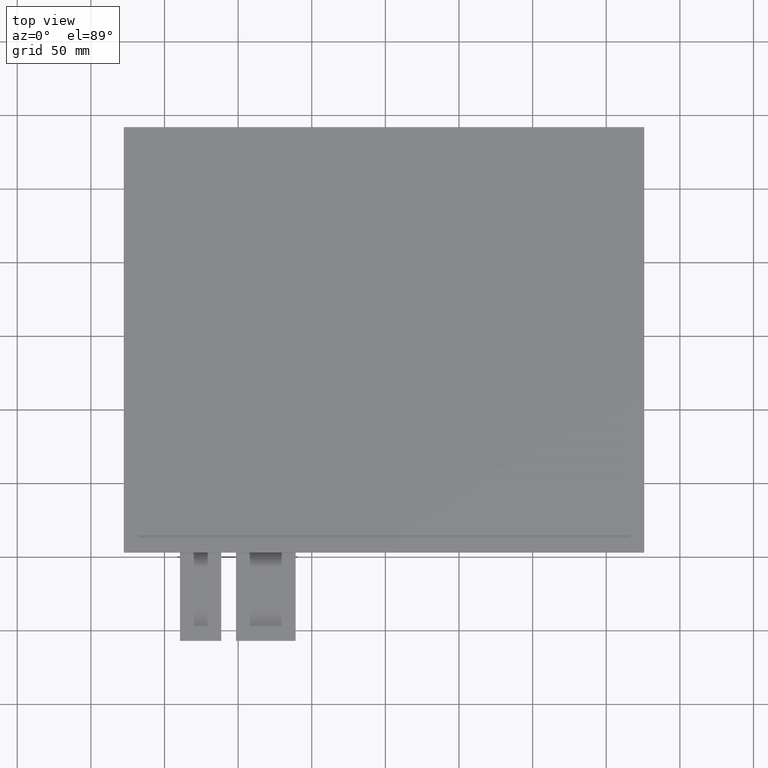
[diagram: clean part render]
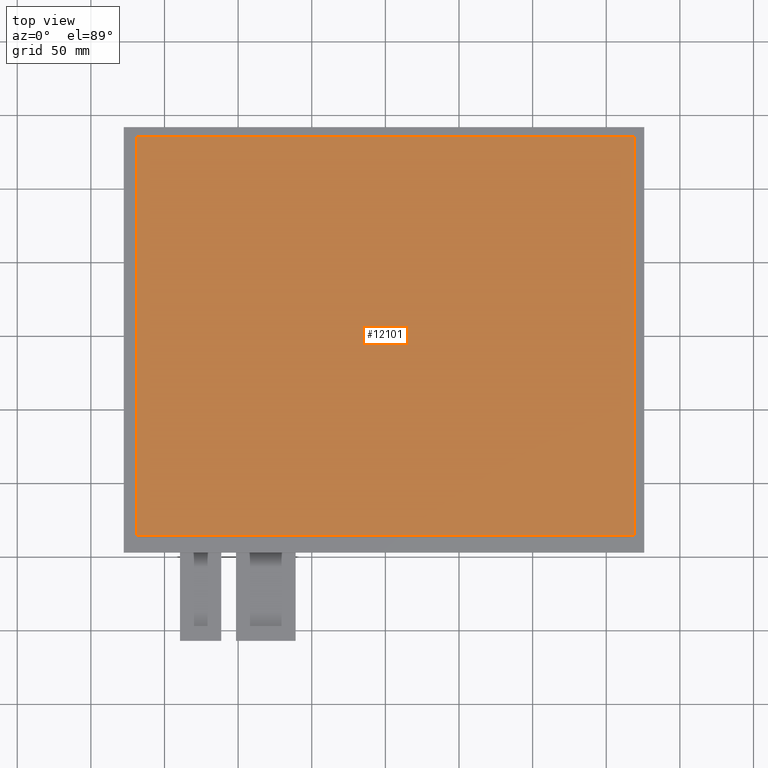
[diagram: same view with one face highlighted and labeled with its STEP entity id]
A machine part, top view. The second image highlights one B-rep face of the part: STEP entity #12101.
In plain terms, the highlighted planar face has unit normal (0, 0, 1).
Its self-contained STEP definition (entity closure, byte-faithful):
#643=PLANE('',#12707);
#1221=FACE_OUTER_BOUND('',#1803,.T.);
#1803=EDGE_LOOP('',(#11513,#11514,#11515,#11516));
#3477=LINE('',#18957,#5185);
#3481=LINE('',#18965,#5189);
#3484=LINE('',#18971,#5192);
#3487=LINE('',#18976,#5195);
#5185=VECTOR('',#15525,10.);
#5189=VECTOR('',#15531,10.);
#5192=VECTOR('',#15536,10.);
#5195=VECTOR('',#15541,10.);
#6349=VERTEX_POINT('',#18955);
#6350=VERTEX_POINT('',#18956);
#6353=VERTEX_POINT('',#18964);
#6355=VERTEX_POINT('',#18970);
#8053=EDGE_CURVE('',#6349,#6350,#3477,.T.);
#8057=EDGE_CURVE('',#6353,#6349,#3481,.T.);
#8060=EDGE_CURVE('',#6355,#6353,#3484,.T.);
#8063=EDGE_CURVE('',#6350,#6355,#3487,.T.);
#11513=ORIENTED_EDGE('',*,*,#8053,.T.);
#11514=ORIENTED_EDGE('',*,*,#8063,.T.);
#11515=ORIENTED_EDGE('',*,*,#8060,.T.);
#11516=ORIENTED_EDGE('',*,*,#8057,.T.);
#12101=ADVANCED_FACE('',(#1221),#643,.T.);
#12707=AXIS2_PLACEMENT_3D('',#19028,#15587,#15588);
#15525=DIRECTION('',(1.,0.,0.));
#15531=DIRECTION('',(0.,-1.,0.));
#15536=DIRECTION('',(-1.,0.,0.));
#15541=DIRECTION('',(0.,1.,0.));
#15587=DIRECTION('center_axis',(0.,0.,1.));
#15588=DIRECTION('ref_axis',(1.,0.,0.));
#18955=CARTESIAN_POINT('',(-169.,-135.2,0.));
#18956=CARTESIAN_POINT('',(169.,-135.2,0.));
#18957=CARTESIAN_POINT('',(-84.97,-135.2,0.));
#18964=CARTESIAN_POINT('',(-169.,135.2,0.));
#18965=CARTESIAN_POINT('',(-169.,66.355,0.));
#18970=CARTESIAN_POINT('',(169.,135.2,0.));
#18971=CARTESIAN_POINT('',(84.03,135.2,0.));
#18976=CARTESIAN_POINT('',(169.,-68.845,0.));
#19028=CARTESIAN_POINT('Origin',(-0.94000000000003,-2.48999999999998,0.));